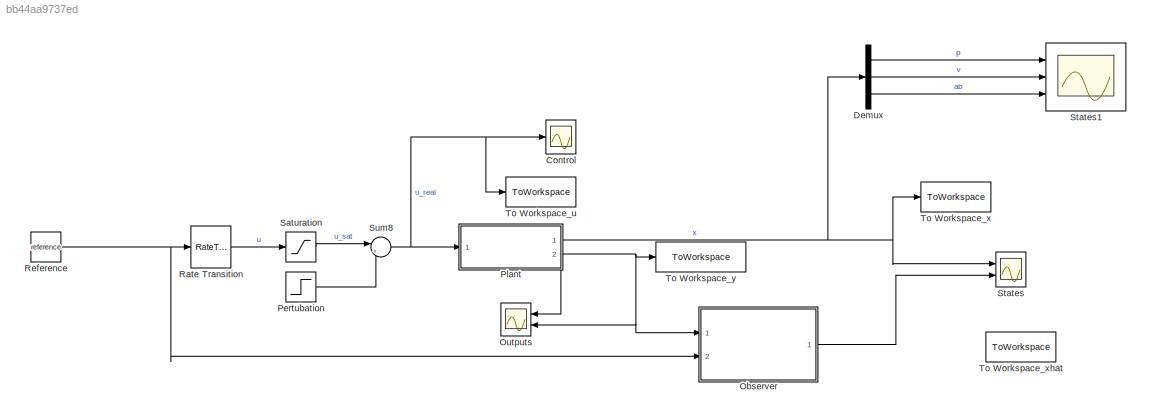
MODEL slx_bb44aa9737ed
KIND model
CONFIG AbsTol = auto
CONFIG EnableMultiTasking = off
CONFIG FixedStep = auto
CONFIG MaxStep = auto
CONFIG MinStep = auto
CONFIG RelTol = 1e-3
CONFIG SampleTimeConstraint = Unconstrained
CONFIG SolverName = VariableStepAuto
CONFIG StartTime = 0.0
CONFIG StopTime = 10.0
BLOCK [Scope] Control
  Floating = off
  NumInputPorts = 1
  Ports = [1]
  ScopeSpecificationString = Simulink.scopes.TimeScopeBlockCfg('CurrentConfiguration', extmgr.ConfigurationSet(extmgr.Configuration('Core','General UI',true),extmgr.Configuration('Core','Source UI',true),extmgr.Configuration('Sources','WiredSimulink',true,'DataLoggingVariableName','ScopeData1'),extmgr.Configuration('Visuals','Time Domain',true,'SerializedDisplays',{struct('MinYLimReal','-0.17351','MaxYLimReal','0.13159','YLab...<+1394ch>
BLOCK [Demux] Demux
  Outputs = 3
  Ports = [1, 3]
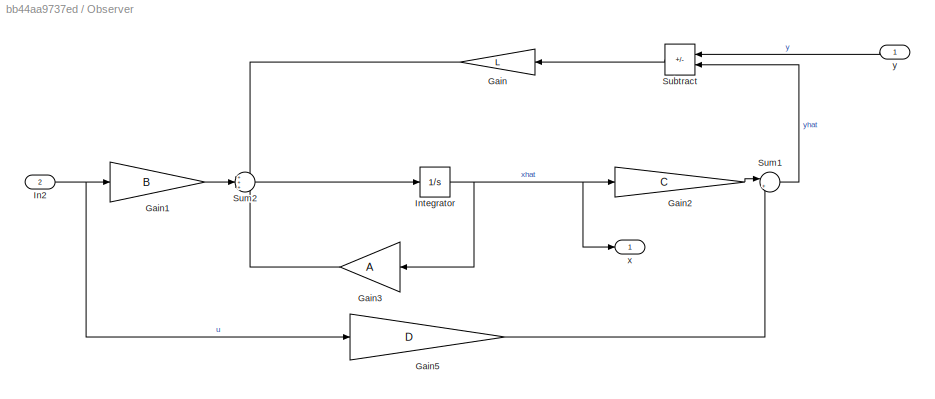
BLOCK [SubSystem] Observer
  Ports = [2, 1]
  RequestExecContextInheritance = off
BLOCK [Gain] Observer/Gain
  Gain = L
  Multiplication = Matrix(K*u) (u vector)
BLOCK [Gain] Observer/Gain1
  Gain = B
  Multiplication = Matrix(K*u) (u vector)
BLOCK [Gain] Observer/Gain2
  Gain = C
  Multiplication = Matrix(K*u) (u vector)
BLOCK [Gain] Observer/Gain3
  Gain = A
  Multiplication = Matrix(K*u) (u vector)
BLOCK [Gain] Observer/Gain5
  Gain = D
  Multiplication = Matrix(K*u) (u vector)
BLOCK [Inport] Observer/In2
  IconDisplay = Signal name
  Port = 2
BLOCK [Integrator] Observer/Integrator
  InitialCondition = x0_observer
  Ports = [1, 1]
BLOCK [Sum] Observer/Subtract
  IconShape = rectangular
  Inputs = +-
  Ports = [2, 1]
BLOCK [Sum] Observer/Sum1
  Inputs = |++
  Ports = [2, 1]
BLOCK [Sum] Observer/Sum2
  Inputs = +++
  Ports = [3, 1]
BLOCK [Outport] Observer/x
  IconDisplay = Signal name
BLOCK [Inport] Observer/y
BLOCK [Scope] Outputs
  Floating = off
  NumInputPorts = 2
  Ports = [2]
  ScopeSpecificationString = Simulink.scopes.TimeScopeBlockCfg('CurrentConfiguration', extmgr.ConfigurationSet(extmgr.Configuration('Core','General UI',true),extmgr.Configuration('Core','Source UI',true),extmgr.Configuration('Sources','WiredSimulink',true,'DataLoggingVariableName','ScopeData3'),extmgr.Configuration('Visuals','Time Domain',true,'SerializedDisplays',{struct('MinYLimReal','-1.42507','MaxYLimReal','1.30923','YLab...<+1431ch>
BLOCK [Step] Pertubation
  After = wind_final_value
  Before = wind_initial_value
  SampleTime = h_plant
  Time = wind_steptime
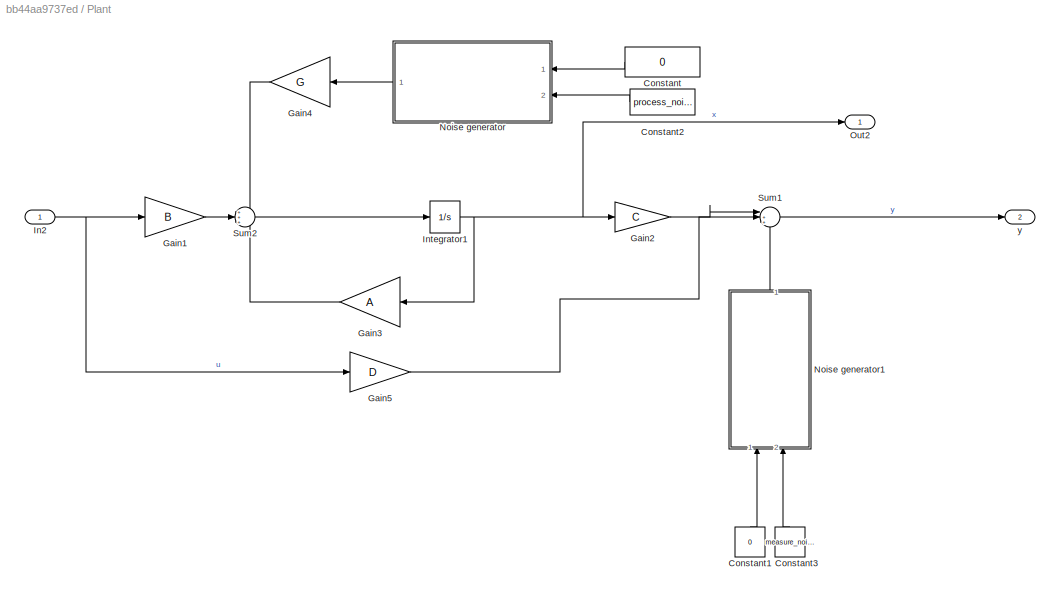
BLOCK [SubSystem] Plant
  Ports = [1, 2]
  RequestExecContextInheritance = off
BLOCK [Constant] Plant/Constant
  Value = 0
  VectorParams1D = off
BLOCK [Constant] Plant/Constant1
  NameLocation = left
  Value = 0
BLOCK [Constant] Plant/Constant2
  Value = process_noise_covariance
BLOCK [Constant] Plant/Constant3
  NameLocation = left
  Value = measure_noise_covariance
BLOCK [Gain] Plant/Gain1
  Gain = B
  Multiplication = Matrix(K*u) (u vector)
BLOCK [Gain] Plant/Gain2
  Gain = C
  Multiplication = Matrix(K*u) (u vector)
BLOCK [Gain] Plant/Gain3
  Gain = A
  Multiplication = Matrix(K*u) (u vector)
BLOCK [Gain] Plant/Gain4
  Gain = G
  Multiplication = Matrix(K*u) (u vector)
BLOCK [Gain] Plant/Gain5
  Gain = D
  Multiplication = Matrix(K*u) (u vector)
BLOCK [Inport] Plant/In2
  IconDisplay = Signal name
BLOCK [Integrator] Plant/Integrator1
  InitialCondition = x0
  Ports = [1, 1]
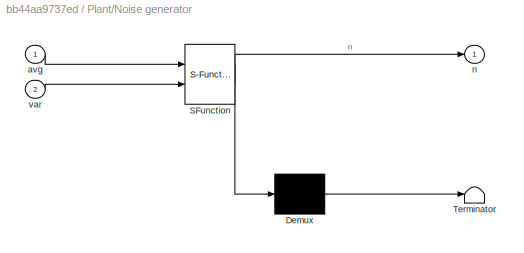
BLOCK [SubSystem] Plant/Noise generator
  ErrorFcn = Stateflow.Translate.translate
  PermitHierarchicalResolution = ExplicitOnly
  Ports = [2, 1]
  RequestExecContextInheritance = off
  SFBlockType = MATLAB Function
  TreatAsAtomicUnit = on
BLOCK [Demux] Plant/Noise generator/ Demux 
  Outputs = 1
  Ports = [1, 1]
BLOCK [S-Function] Plant/Noise generator/ SFunction 
  EnableBusSupport = on
  FunctionName = sf_sfun
  PortCounts = [2 2]
  Ports = [2, 2]
  SFcnIsStateOwnerBlock = off
  SFunctionDeploymentMode = off
  Tag = Stateflow S-Function 4
BLOCK [Terminator] Plant/Noise generator/ Terminator 
BLOCK [Inport] Plant/Noise generator/avg
BLOCK [Outport] Plant/Noise generator/n
BLOCK [Inport] Plant/Noise generator/var
  Port = 2
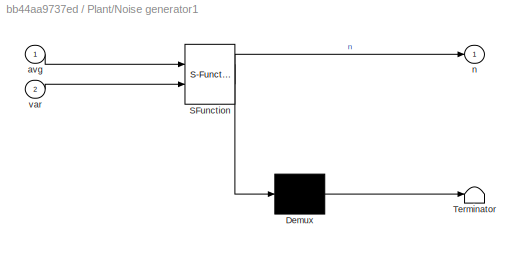
BLOCK [SubSystem] Plant/Noise generator1
  ErrorFcn = Stateflow.Translate.translate
  NameLocation = left
  PermitHierarchicalResolution = ExplicitOnly
  Ports = [2, 1]
  RequestExecContextInheritance = off
  SFBlockType = MATLAB Function
  TreatAsAtomicUnit = on
BLOCK [Demux] Plant/Noise generator1/ Demux 
  Outputs = 1
  Ports = [1, 1]
BLOCK [S-Function] Plant/Noise generator1/ SFunction 
  EnableBusSupport = on
  FunctionName = sf_sfun
  PortCounts = [2 2]
  Ports = [2, 2]
  SFcnIsStateOwnerBlock = off
  SFunctionDeploymentMode = off
  Tag = Stateflow S-Function 3
BLOCK [Terminator] Plant/Noise generator1/ Terminator 
BLOCK [Inport] Plant/Noise generator1/avg
BLOCK [Outport] Plant/Noise generator1/n
BLOCK [Inport] Plant/Noise generator1/var
  Port = 2
BLOCK [Outport] Plant/Out2
  IconDisplay = Signal name
BLOCK [Sum] Plant/Sum1
  Inputs = |+++
  Ports = [3, 1]
BLOCK [Sum] Plant/Sum2
  Inputs = +++
  Ports = [3, 1]
BLOCK [Outport] Plant/y
  IconDisplay = Signal name
  Port = 2
BLOCK [RateTransition] Rate Transition
  Integrity = off
  OutPortSampleTime = h_plant
  OutPortSampleTimeMultiple = 0.01
BLOCK [Constant] Reference
  SampleTime = h
  Value = reference
BLOCK [Saturate] Saturation
  LowerLimit = sat_min
  UpperLimit = sat_max
BLOCK [Scope] States
  Floating = off
  NumInputPorts = 2
  Ports = [2]
  ScopeSpecificationString = Simulink.scopes.TimeScopeBlockCfg('CurrentConfiguration', extmgr.ConfigurationSet(extmgr.Configuration('Core','General UI',true),extmgr.Configuration('Core','Source UI',true),extmgr.Configuration('Sources','WiredSimulink',true,'DataLoggingVariableName','ScopeData4'),extmgr.Configuration('Visuals','Time Domain',true,'SerializedDisplays',{struct('MinYLimReal','-314.92931','MaxYLimReal','1852.8973','...<+2269ch>
BLOCK [Scope] States1
  Floating = off
  NumInputPorts = 3
  Ports = [3]
  ScopeSpecificationString = Simulink.scopes.TimeScopeBlockCfg('CurrentConfiguration', extmgr.ConfigurationSet(extmgr.Configuration('Core','General UI',true),extmgr.Configuration('Core','Source UI',true),extmgr.Configuration('Sources','WiredSimulink',true),extmgr.Configuration('Visuals','Time Domain',true,'SerializedDisplays',{struct('MinYLimReal','-2.2308','MaxYLimReal','3.23421','YLabelReal','','MinYLimMag','0.00000','MaxYL...<+3523ch>
BLOCK [Sum] Sum8
  Inputs = |++
  Ports = [2, 1]
BLOCK [ToWorkspace] To Workspace_u
  FixptAsFi = on
  MaxDataPoints = inf
  Ports = [1]
  SampleTime = -1
  SaveFormat = Timeseries
  VariableName = u
BLOCK [ToWorkspace] To Workspace_x
  FixptAsFi = on
  MaxDataPoints = inf
  Ports = [1]
  SampleTime = -1
  SaveFormat = Timeseries
  VariableName = x
BLOCK [ToWorkspace] To Workspace_xhat
  FixptAsFi = on
  MaxDataPoints = inf
  Ports = [1]
  SampleTime = -1
  SaveFormat = Timeseries
  VariableName = xhat
BLOCK [ToWorkspace] To Workspace_y
  FixptAsFi = on
  MaxDataPoints = inf
  Ports = [1]
  SampleTime = -1
  SaveFormat = Timeseries
  VariableName = y
LINE Demux:1 -> States1:1
LINE Demux:2 -> States1:2
LINE Demux:3 -> States1:3
LINE Observer/Gain1:1 -> Observer/Sum2:2
LINE Observer/Gain2:1 -> Observer/Sum1:1
LINE Observer/Gain3:1 -> Observer/Sum2:3
LINE Observer/Gain5:1 -> Observer/Sum1:2
LINE Observer/Gain:1 -> Observer/Sum2:1
NET Observer/In2:1 -> Observer/Gain1:1, Observer/Gain5:1
NET Observer/Integrator:1 -> Observer/Gain2:1, Observer/Gain3:1, Observer/x:1
LINE Observer/Subtract:1 -> Observer/Gain:1
LINE Observer/Sum1:1 -> Observer/Subtract:2
LINE Observer/Sum2:1 -> Observer/Integrator:1
LINE Observer/y:1 -> Observer/Subtract:1
LINE Observer:1 -> States:2
LINE Pertubation:1 -> Sum8:2
LINE Plant/Constant1:1 -> Plant/Noise generator1:1
LINE Plant/Constant2:1 -> Plant/Noise generator:2
LINE Plant/Constant3:1 -> Plant/Noise generator1:2
LINE Plant/Constant:1 -> Plant/Noise generator:1
LINE Plant/Gain1:1 -> Plant/Sum2:2
LINE Plant/Gain2:1 -> Plant/Sum1:1
LINE Plant/Gain3:1 -> Plant/Sum2:3
LINE Plant/Gain4:1 -> Plant/Sum2:1
LINE Plant/Gain5:1 -> Plant/Sum1:2
NET Plant/In2:1 -> Plant/Gain1:1, Plant/Gain5:1
NET Plant/Integrator1:1 -> Plant/Gain2:1, Plant/Gain3:1, Plant/Out2:1
LINE Plant/Noise generator1:1 -> Plant/Sum1:3
LINE Plant/Noise generator:1 -> Plant/Gain4:1
LINE Plant/Sum1:1 -> Plant/y:1
LINE Plant/Sum2:1 -> Plant/Integrator1:1
NET Plant:1 -> Demux:1, States:1, To Workspace_x:1
NET Plant:2 -> Observer:1, Outputs:1, Outputs:2, To Workspace_y:1
LINE Rate Transition:1 -> Saturation:1
NET Reference:1 -> Observer:2, Rate Transition:1
LINE Saturation:1 -> Sum8:1
NET Sum8:1 -> Control:1, Plant:1, To Workspace_u:1
note: NET lines group one-source signal fan-out (src -> all destinations, sorted); 1:1 wires keep LINE
CHART Plant/Noise generator states=1 transitions=1
  STATE_LABEL 'eML_blk_kernel()'
  STATE_LABEL 'SCRIPT:\nfunction n = generate_gaussian_noise(avg, var)\nn = avg + var*randn(length(var), 1);'
CHART Plant/Noise generator1 states=1 transitions=1
  STATE_LABEL 'eML_blk_kernel()'
  STATE_LABEL 'SCRIPT:\nfunction n = generate_gaussian_noise(avg, var)\nn = avg + var*randn(length(var), 1);'
CHART  states=0 transitions=0
CHART  states=0 transitions=0
